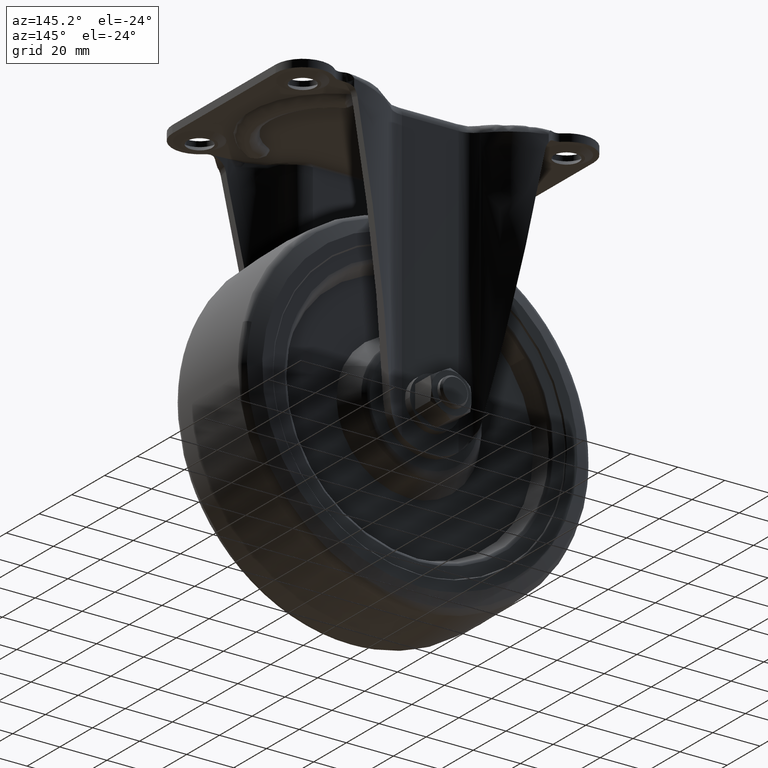
[diagram: clean part render]
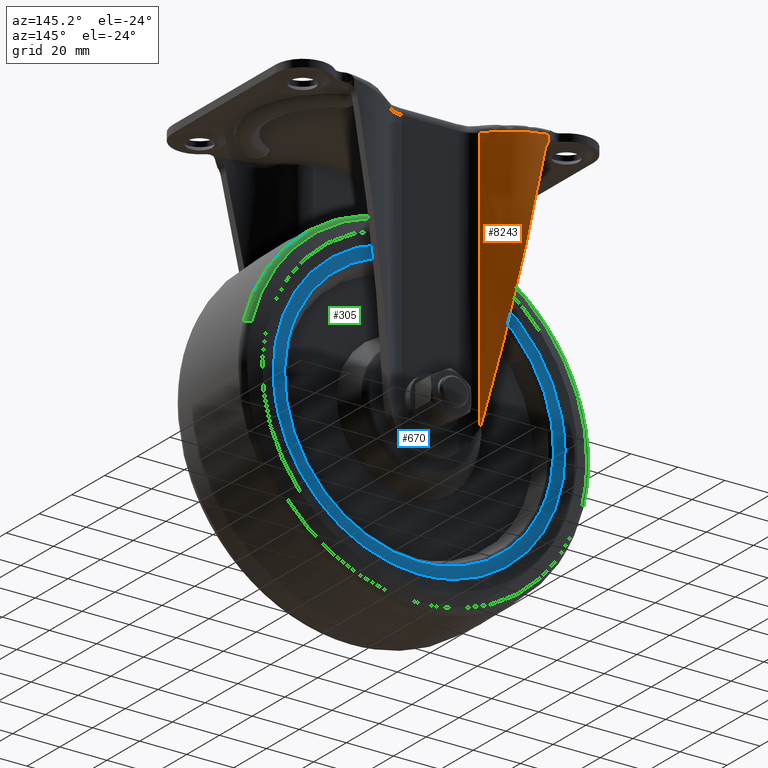
[diagram: same view with three faces highlighted in distinct colors, each labeled with its STEP entity id]
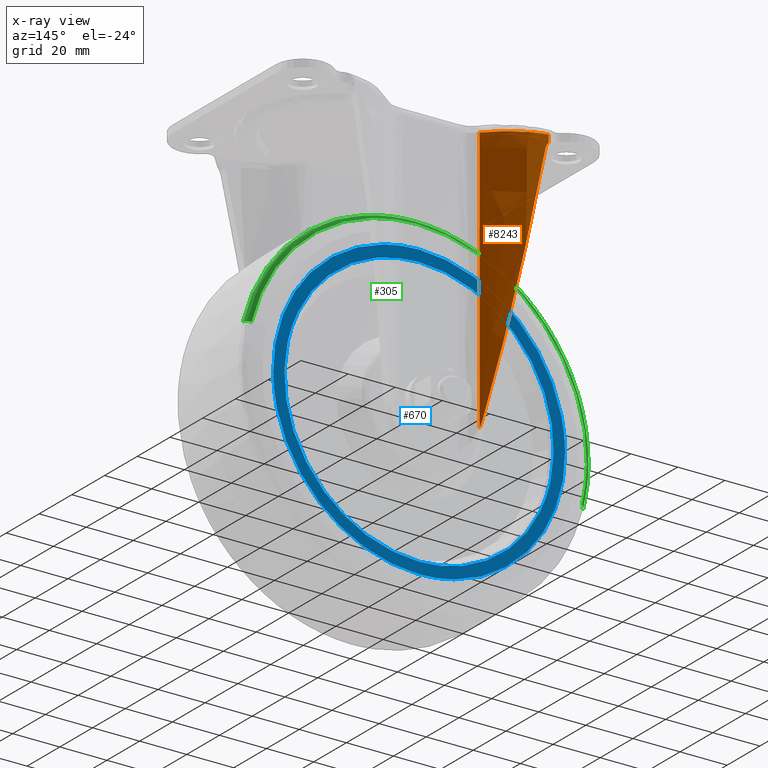
[diagram: x-ray of the same camera — body ghosted, the three highlighted faces saturated]
A machine part, auxiliary view with three faces highlighted in distinct colors.
The next image is the same camera in x-ray (body ghosted, the three faces saturated) — at least one of them is partly hidden behind the body in this view.
Their STEP definitions:

[orange] entity #8243 — the highlighted face is a freeform B-spline surface patch.
#6175=CARTESIAN_POINT('',(-18.914965390891901,31.823452248050248,-4.200000000000000));
#6176=VERTEX_POINT('',#6175);
#6190=CARTESIAN_POINT('',(-41.310867333052400,41.797070675534847,-2.800198280694555));
#6191=VERTEX_POINT('',#6190);
#6192=CARTESIAN_POINT('',(-41.310867333052400,41.797070675534847,-2.800198280694555));
#6193=CARTESIAN_POINT('',(-41.033638122431213,41.787823440271190,-2.823273923923364));
#6194=CARTESIAN_POINT('',(-40.486316256655037,41.769567622335352,-2.868831185786346));
#6195=CARTESIAN_POINT('',(-39.677219676884391,41.716107141901638,-2.935735081493415));
#6196=CARTESIAN_POINT('',(-38.890952693475988,41.645833362722527,-3.000455438885109));
#6197=CARTESIAN_POINT('',(-38.127897782924677,41.558498107182942,-3.062956362403513));
#6198=CARTESIAN_POINT('',(-37.388307968972462,41.456161941061133,-3.123247125043764));
#6199=CARTESIAN_POINT('',(-36.672383769988812,41.340239901498592,-3.181325385844740));
#6200=CARTESIAN_POINT('',(-35.980259853360280,41.212258578885148,-3.237191793000607));
#6201=CARTESIAN_POINT('',(-35.312014779681839,41.073659411001067,-3.290846233591897));
#6202=CARTESIAN_POINT('',(-34.667674674558207,40.925847296648712,-3.342288796816125));
#6203=CARTESIAN_POINT('',(-34.047218299462450,40.770176644760923,-3.391519527968912));
#6204=CARTESIAN_POINT('',(-33.450581592286980,40.607953777683313,-3.438538494217433));
#6205=CARTESIAN_POINT('',(-32.877662161113633,40.440435452748261,-3.483345764533865));
#6206=CARTESIAN_POINT('',(-32.328323595764282,40.268828648898257,-3.525941434600728));
#6207=CARTESIAN_POINT('',(-31.802399633086530,40.094290283488718,-3.566325560662325));
#6208=CARTESIAN_POINT('',(-31.299698129728149,39.917927157121731,-3.604498399560539));
#6209=CARTESIAN_POINT('',(-30.820004959798229,39.740796088403073,-3.640459578369495));
#6210=CARTESIAN_POINT('',(-30.363087418437519,39.563904008454259,-3.674211023113847));
#6211=CARTESIAN_POINT('',(-29.928698588242590,39.388208810484812,-3.705746733040574));
#6212=CARTESIAN_POINT('',(-29.516577575317569,39.214618080718928,-3.735088478078207));
#6213=CARTESIAN_POINT('',(-28.723336103917731,38.867681771360068,-3.790138003451206));
#6214=CARTESIAN_POINT('',(-27.570466121118692,38.316613577918787,-3.866034712222266));
#6215=CARTESIAN_POINT('',(-26.093679983757092,37.511516601307619,-3.955093731141885));
#6216=CARTESIAN_POINT('',(-24.697704659041609,36.653771071691821,-4.030439326039748));
#6217=CARTESIAN_POINT('',(-23.382841974869830,35.751251987917129,-4.092113859119640));
#6218=CARTESIAN_POINT('',(-22.148312807404739,34.811890404244373,-4.140206191581433));
#6219=CARTESIAN_POINT('',(-20.994423097411001,33.841758349421383,-4.174340188807389));
#6220=CARTESIAN_POINT('',(-19.915349003443779,32.851916202767747,-4.195878371411021));
#6221=CARTESIAN_POINT('',(-19.245042321144439,32.162794297229340,-4.198640067174997));
#6222=CARTESIAN_POINT('',(-18.914965390891901,31.823452248050259,-4.199999999999982));
#6223=B_SPLINE_CURVE_WITH_KNOTS('',3,(#6192,#6193,#6194,#6195,#6196,#6197,#6198,#6199,#6200,#6201,#6202,#6203,#6204,#6205,#6206,#6207,#6208,#6209,#6210,#6211,#6212,#6213,#6214,#6215,#6216,#6217,#6218,#6219,#6220,#6221,#6222),.UNSPECIFIED.,.F.,.U.,(4,1,1,1,1,1,1,1,1,1,1,1,1,1,1,1,1,1,1,1,1,1,1,1,1,1,1,1,4),(0.0,0.033128302968988,0.065403800817100,0.096826499661041,0.127396406522921,0.157113529423377,0.185977877488419,0.213989461072557,0.241148291901244,0.267454383236407,0.292907750069698,0.317508409349216,0.341256380246945,0.364151684475952,0.386194346668925,0.407384394832839,0.427721860898881,0.447206781392634,0.465839198257507,0.483619159875461,0.500546722344587,0.569098661517072,0.635895238104365,0.700939460937585,0.764234592080952,0.825784175034230,0.885592066898320,0.943662475174498,1.0),.UNSPECIFIED.);
#6224=EDGE_CURVE('',#6191,#6176,#6223,.T.);
#7988=CARTESIAN_POINT('',(-42.148463117858121,41.807833056924643,-119.831430783263500));
#7989=CARTESIAN_POINT('',(-42.148131936802592,41.808191815316277,-106.502873748346400));
#7990=CARTESIAN_POINT('',(-42.148753870925482,41.807534098067130,-79.845759688423087));
#7991=CARTESIAN_POINT('',(-42.148490392423618,41.807745104357878,-48.745793238400083));
#7992=CARTESIAN_POINT('',(-42.149082053980131,41.807311572260481,-26.531531539014590));
#7993=CARTESIAN_POINT('',(-42.148944182915869,41.807590080979232,-16.535113763391699));
#7994=CARTESIAN_POINT('',(-42.148823675462182,41.807884125362399,-9.870835255104575));
#7995=CARTESIAN_POINT('',(-42.148736649260883,41.808174500128672,-6.538696003532283));
#7996=CARTESIAN_POINT('',(-42.148708623930133,41.806738343592698,-3.761913245199364));
#7997=CARTESIAN_POINT('',(-42.148610045412028,41.807225408726097,-1.540487083681781));
#7998=CARTESIAN_POINT('',(-42.148584904416339,41.806963643748730,-0.429773989553780));
#7999=CARTESIAN_POINT('',(-42.148566360062013,41.806965810387332,0.125582553806966));
#8000=CARTESIAN_POINT('',(-39.040216582173528,41.808809068677341,-119.831430783138000));
#8001=CARTESIAN_POINT('',(-39.039311637263360,41.809683814418392,-106.502873743931300));
#8002=CARTESIAN_POINT('',(-39.040352824251499,41.808875153242283,-79.845759709689133));
#8003=CARTESIAN_POINT('',(-39.039941406519333,41.809004140657869,-48.745793241363089));
#8004=CARTESIAN_POINT('',(-39.040715621337426,41.808356826082758,-26.531531540602220));
#8005=CARTESIAN_POINT('',(-39.040596950534827,41.808623382428742,-16.535113763054721));
#8006=CARTESIAN_POINT('',(-39.040499467338037,41.808681644607383,-9.870835245775611));
#8007=CARTESIAN_POINT('',(-39.040450731087901,41.808024642368579,-6.538695967499131));
#8008=CARTESIAN_POINT('',(-39.040340862978013,41.809142349065752,-3.761913282881113));
#8009=CARTESIAN_POINT('',(-39.040314730700338,41.808436726569042,-1.540487090828467));
#8010=CARTESIAN_POINT('',(-39.040285592672902,41.808444105801406,-0.429774004975094));
#8011=CARTESIAN_POINT('',(-39.040273613463647,41.808342232865357,0.125582541068617));
#8012=CARTESIAN_POINT('',(-35.948320548609942,41.357000774915782,-119.831430783278410));
#8013=CARTESIAN_POINT('',(-35.949458759033178,41.356024599117617,-106.502873759258610));
#8014=CARTESIAN_POINT('',(-35.948668725188462,41.356219370918573,-79.845759634311037));
#8015=CARTESIAN_POINT('',(-35.948628667446101,41.356797890743593,-48.745793266718813));
#8016=CARTESIAN_POINT('',(-35.948239756244398,41.357061793861519,-26.531531538490139));
#8017=CARTESIAN_POINT('',(-35.948154259194922,41.357359294085228,-16.535113761965551));
#8018=CARTESIAN_POINT('',(-35.948205275523833,41.357275669438508,-9.870835246176608));
#8019=CARTESIAN_POINT('',(-35.948234328674467,41.357571930480063,-6.538695997606204));
#8020=CARTESIAN_POINT('',(-35.948324558084771,41.356843943994740,-3.761913264998131));
#8021=CARTESIAN_POINT('',(-35.948381354966827,41.356899049781291,-1.540487096948937));
#8022=CARTESIAN_POINT('',(-35.948420839101523,41.356769850719459,-0.429774008717178));
#8023=CARTESIAN_POINT('',(-35.948441806456849,41.356736817419979,0.125582534290149));
#8024=CARTESIAN_POINT('',(-29.992384691724730,39.575962944798789,-119.831430783007900));
#8025=CARTESIAN_POINT('',(-29.991489471920922,39.576954125258119,-106.502873755547300));
#8026=CARTESIAN_POINT('',(-29.992909161547249,39.575273424821297,-79.845759674211450));
#8027=CARTESIAN_POINT('',(-29.992146688467159,39.576256081167031,-48.745793267071370));
#8028=CARTESIAN_POINT('',(-29.992303676824129,39.576010550220019,-26.531531542711861));
#8029=CARTESIAN_POINT('',(-29.992127327503891,39.576351759823908,-16.535113756441461));
#8030=CARTESIAN_POINT('',(-29.992251263717080,39.576204740814070,-9.870835242228834));
#8031=CARTESIAN_POINT('',(-29.992327135776709,39.575960773054327,-6.538695981293444));
#8032=CARTESIAN_POINT('',(-29.992398304939730,39.575985456255232,-3.761913271387767));
#8033=CARTESIAN_POINT('',(-29.992471108323642,39.575821663631707,-1.540487098669142));
#8034=CARTESIAN_POINT('',(-29.992511140476090,39.575771689741408,-0.429774013885612));
#8035=CARTESIAN_POINT('',(-29.992529768222479,39.575738583331272,0.125582528981318));
#8036=CARTESIAN_POINT('',(-27.159847891224612,38.256488007735889,-119.831430783896710));
#8037=CARTESIAN_POINT('',(-27.161794974544819,38.254470286790159,-106.502873734843700));
#8038=CARTESIAN_POINT('',(-27.159155542649639,38.257227083675737,-79.845759682069840));
#8039=CARTESIAN_POINT('',(-27.160150496162139,38.256202117209391,-48.745793265799918));
#8040=CARTESIAN_POINT('',(-27.159838784330301,38.256549779449500,-26.531531550813110));
#8041=CARTESIAN_POINT('',(-27.159558060495780,38.256883461074679,-16.535113745319400));
#8042=CARTESIAN_POINT('',(-27.159772578576071,38.256653557261643,-9.870835236466908));
#8043=CARTESIAN_POINT('',(-27.159977697071479,38.256456514592031,-6.538695987242859));
#8044=CARTESIAN_POINT('',(-27.160018947901040,38.256372114985780,-3.761913267376277));
#8045=CARTESIAN_POINT('',(-27.160126872304101,38.256260062391682,-1.540487099072695));
#8046=CARTESIAN_POINT('',(-27.160163091359621,38.256215519395766,-0.429774012510340));
#8047=CARTESIAN_POINT('',(-27.160191025932090,38.256184300599287,0.125582529894146));
#8048=CARTESIAN_POINT('',(-23.696877185966201,35.979928044003053,-119.831430781876310));
#8049=CARTESIAN_POINT('',(-23.696929845485460,35.979867348630201,-106.502873750196900));
#8050=CARTESIAN_POINT('',(-23.696538283329140,35.980288059287702,-79.845759679351644));
#8051=CARTESIAN_POINT('',(-23.696617804009328,35.980159522065307,-48.745793265838010));
#8052=CARTESIAN_POINT('',(-23.696616798046971,35.980212227228272,-26.531531551529831));
#8053=CARTESIAN_POINT('',(-23.696323151698589,35.980524798116399,-16.535113743948539));
#8054=CARTESIAN_POINT('',(-23.696299268675940,35.980575908955963,-9.870835209241186));
#8055=CARTESIAN_POINT('',(-23.696497114970370,35.980378686624192,-6.538695959481749));
#8056=CARTESIAN_POINT('',(-23.696805300146391,35.980071537858791,-3.761913260602808));
#8057=CARTESIAN_POINT('',(-23.696924599759232,35.979960127840940,-1.540487089820801));
#8058=CARTESIAN_POINT('',(-23.697084868852780,35.979789968862967,-0.429774012975475));
#8059=CARTESIAN_POINT('',(-23.697144319894431,35.979727726727823,0.125582527217141));
#8060=CARTESIAN_POINT('',(-22.441799329992609,35.064870477987732,-119.831430782976400));
#8061=CARTESIAN_POINT('',(-22.441876123646139,35.064788353171188,-106.502873749049800));
#8062=CARTESIAN_POINT('',(-22.441564746608471,35.065121421112572,-79.845759679447596));
#8063=CARTESIAN_POINT('',(-22.441630012142500,35.065018987677263,-48.745793266132587));
#8064=CARTESIAN_POINT('',(-22.441648578336331,35.065047731232077,-26.531531548735909));
#8065=CARTESIAN_POINT('',(-22.441462081982969,35.065243849427937,-16.535113747405969));
#8066=CARTESIAN_POINT('',(-22.441299074777209,35.065435146910623,-9.870835195895932));
#8067=CARTESIAN_POINT('',(-22.441575868795660,35.065181419898053,-6.538695952604484));
#8068=CARTESIAN_POINT('',(-22.441582004290581,35.065224161582790,-3.761913227121164));
#8069=CARTESIAN_POINT('',(-22.442136841271040,35.064624004963612,-1.540487089537640));
#8070=CARTESIAN_POINT('',(-22.442296993434439,35.064461835305167,-0.429774012689791));
#8071=CARTESIAN_POINT('',(-22.442397678429050,35.064357287328093,0.125582524227297));
#8072=CARTESIAN_POINT('',(-20.864118636625680,33.728893351401723,-119.831430782574000));
#8073=CARTESIAN_POINT('',(-20.864045490963999,33.728971423613892,-106.502873749590510));
#8074=CARTESIAN_POINT('',(-20.864078129256431,33.728943351681750,-79.845759678609895));
#8075=CARTESIAN_POINT('',(-20.864017617547422,33.728989279293152,-48.745793266347498));
#8076=CARTESIAN_POINT('',(-20.864059219300991,33.728970555629758,-26.531531542987999));
#8077=CARTESIAN_POINT('',(-20.864000741093939,33.729037759296517,-16.535113746541182));
#8078=CARTESIAN_POINT('',(-20.863992152362851,33.729059830205557,-9.870835204926124));
#8079=CARTESIAN_POINT('',(-20.863121141366339,33.729945299662198,-6.538695851671469));
#8080=CARTESIAN_POINT('',(-20.864475601539720,33.728663593956753,-3.761913242757073));
#8081=CARTESIAN_POINT('',(-20.864945727191380,33.728144111450121,-1.540487100014433));
#8082=CARTESIAN_POINT('',(-20.865337446359181,33.727758078031840,-0.429774043396999));
#8083=CARTESIAN_POINT('',(-20.865418457821718,33.727674427232202,0.125582495597189));
#8084=CARTESIAN_POINT('',(-19.919648722807452,32.847152228608763,-119.831430782675400));
#8085=CARTESIAN_POINT('',(-19.919612135527299,32.847192171548237,-106.502873749087100));
#8086=CARTESIAN_POINT('',(-19.919665179459781,32.847143580236022,-79.845759678115840));
#8087=CARTESIAN_POINT('',(-19.919619777881891,32.847185314749012,-48.745793266480710));
#8088=CARTESIAN_POINT('',(-19.919633610070019,32.847176776393979,-26.531531538082199));
#8089=CARTESIAN_POINT('',(-19.919662029286489,32.847152284312408,-16.535113745396458));
#8090=CARTESIAN_POINT('',(-19.919645599838439,32.847168719723634,-9.870835200839158));
#8091=CARTESIAN_POINT('',(-19.919036651637480,32.847786902174377,-6.538695870744046));
#8092=CARTESIAN_POINT('',(-19.918458671688150,32.848351080554536,-3.761913077952217));
#8093=CARTESIAN_POINT('',(-19.921894448475779,32.844981143530539,-1.540487211537722));
#8094=CARTESIAN_POINT('',(-19.921373558704961,32.845489359785617,-0.429774069654108));
#8095=CARTESIAN_POINT('',(-19.921534100015361,32.845331982559522,0.125582462073115));
#8096=CARTESIAN_POINT('',(-19.281307542558071,32.206119093818323,-119.831430782827400));
#8097=CARTESIAN_POINT('',(-19.281266231784699,32.206163504767282,-106.502873748925790));
#8098=CARTESIAN_POINT('',(-19.281294080565530,32.206137695043722,-79.845759678488349));
#8099=CARTESIAN_POINT('',(-19.281251837304769,32.206183414436467,-48.745793264309377));
#8100=CARTESIAN_POINT('',(-19.281324487540680,32.206105673575372,-26.531531540301120));
#8101=CARTESIAN_POINT('',(-19.281136254458850,32.206283052700797,-16.535113726430879));
#8102=CARTESIAN_POINT('',(-19.281657525648921,32.205768722717323,-9.870835229686417));
#8103=CARTESIAN_POINT('',(-19.279460273516840,32.207916021844262,-6.538695751598512));
#8104=CARTESIAN_POINT('',(-19.287289033947580,32.200303295049657,-3.761913735148998));
#8105=CARTESIAN_POINT('',(-19.282741825985241,32.204706300365302,-1.540487131341338));
#8106=CARTESIAN_POINT('',(-19.283568697724370,32.203905306609087,-0.429774113767058));
#8107=CARTESIAN_POINT('',(-19.283477350233010,32.203996086340112,0.125582441339491));
#8108=CARTESIAN_POINT('',(-18.923115708222060,31.833193111933479,-119.831430783351390));
#8109=CARTESIAN_POINT('',(-18.923125538237869,31.833178351019701,-106.502873748866800));
#8110=CARTESIAN_POINT('',(-18.923113126932549,31.833194561541038,-79.845759677420958));
#8111=CARTESIAN_POINT('',(-18.923127307405721,31.833187672227211,-48.745793266128402));
#8112=CARTESIAN_POINT('',(-18.923103987708760,31.833196744566099,-26.531531533016619));
#8113=CARTESIAN_POINT('',(-18.923127916757849,31.833161834073660,-16.535113738342499));
#8114=CARTESIAN_POINT('',(-18.923087866759690,31.833190536728001,-9.870835189172725));
#8115=CARTESIAN_POINT('',(-18.923471689972949,31.832810297890489,-6.538695947990862));
#8116=CARTESIAN_POINT('',(-18.922110785277489,31.834128006824962,-3.761913088817379));
#8117=CARTESIAN_POINT('',(-18.925890126895840,31.830447290501439,-1.540487248354171));
#8118=CARTESIAN_POINT('',(-18.925302115888890,31.831029327418609,-0.429774100712471));
#8119=CARTESIAN_POINT('',(-18.925451759058092,31.830886320054301,0.125582432291428));
#8120=CARTESIAN_POINT('',(-18.657825486024059,31.550173995310921,-119.831430783313610));
#8121=CARTESIAN_POINT('',(-18.657864191562151,31.550129293210048,-106.502873748733710));
#8122=CARTESIAN_POINT('',(-18.657822474363090,31.550176506189040,-79.845759677041045));
#8123=CARTESIAN_POINT('',(-18.657867056674359,31.550141602913961,-48.745793266503227));
#8124=CARTESIAN_POINT('',(-18.657808922403412,31.550179329043679,-26.531531530154162));
#8125=CARTESIAN_POINT('',(-18.657906862829400,31.550068554228019,-16.535113742126001));
#8126=CARTESIAN_POINT('',(-18.657590695783579,31.550361947724799,-9.870835167032551));
#8127=CARTESIAN_POINT('',(-18.658885055685520,31.549089748095120,-6.538696009437957));
#8128=CARTESIAN_POINT('',(-18.654736342579699,31.553120062170350,-3.761912895225965));
#8129=CARTESIAN_POINT('',(-18.661002815843108,31.547022970874789,-1.540487282272607));
#8130=CARTESIAN_POINT('',(-18.660026428983290,31.547983930095640,-0.429774099063213));
#8131=CARTESIAN_POINT('',(-18.660253009723078,31.547767084838330,0.125582426904833));
#8132=CARTESIAN_POINT('',(-18.395925627472330,31.263861683305041,-119.831430783512800));
#8133=CARTESIAN_POINT('',(-18.395978440022962,31.263798688109748,-106.502873748507300));
#8134=CARTESIAN_POINT('',(-18.395907584004242,31.263877477249569,-79.845759676955780));
#8135=CARTESIAN_POINT('',(-18.395975354959251,31.263821202303891,-48.745793266205503));
#8136=CARTESIAN_POINT('',(-18.395906614216798,31.263863974803218,-26.531531529022789));
#8137=CARTESIAN_POINT('',(-18.395985144541559,31.263768258114489,-16.535113739251461));
#8138=CARTESIAN_POINT('',(-18.395675075773429,31.264051637417261,-9.870835164354240));
#8139=CARTESIAN_POINT('',(-18.397025172142740,31.262719574833579,-6.538696012028827));
#8140=CARTESIAN_POINT('',(-18.392425280908800,31.267187383672070,-3.761912856730326));
#8141=CARTESIAN_POINT('',(-18.399087478797931,31.260710438618180,-1.540487279927697));
#8142=CARTESIAN_POINT('',(-18.398170556355200,31.261614745025931,-0.429774102222842));
#8143=CARTESIAN_POINT('',(-18.398406002105752,31.261390121222298,0.125582422920966));
#8144=CARTESIAN_POINT('',(-18.200062945708630,31.044451865864922,-119.831430783672900));
#8145=CARTESIAN_POINT('',(-18.200124840662660,31.044376269888819,-106.502873748295700));
#8146=CARTESIAN_POINT('',(-18.200031282080669,31.044479943758191,-79.845759677019430));
#8147=CARTESIAN_POINT('',(-18.200114273981089,31.044409561502949,-48.745793265672887));
#8148=CARTESIAN_POINT('',(-18.200047547790650,31.044446301100070,-26.531531528930561));
#8149=CARTESIAN_POINT('',(-18.200076376512481,31.044396163020341,-16.535113734727609));
#8150=CARTESIAN_POINT('',(-18.199860986320939,31.044584132840271,-9.870835168396503));
#8151=CARTESIAN_POINT('',(-18.200896574885029,31.043555059613482,-6.538695987409854));
#8152=CARTESIAN_POINT('',(-18.197106250177711,31.047232820686741,-3.761912906532102));
#8153=CARTESIAN_POINT('',(-18.203025473288498,31.041483626383531,-1.540487261665616));
#8154=CARTESIAN_POINT('',(-18.202354289585980,31.042149251895658,-0.429774106569418));
#8155=CARTESIAN_POINT('',(-18.202565151129559,31.041949157360818,0.125582420799499));
#8156=CARTESIAN_POINT('',(-18.091293437498940,30.920692749758850,-119.831430783763690));
#8157=CARTESIAN_POINT('',(-18.091359801494239,30.920610625082499,-106.502873748173500));
#8158=CARTESIAN_POINT('',(-18.091252853441340,30.920728995265879,-79.845759677051291));
#8159=CARTESIAN_POINT('',(-18.091345251035150,30.920649788329708,-48.745793265376591));
#8160=CARTESIAN_POINT('',(-18.091278675310392,30.920684080853469,-26.531531528849118));
#8161=CARTESIAN_POINT('',(-18.091280096130479,30.920659086376311,-16.535113732234201));
#8162=CARTESIAN_POINT('',(-18.091116989535148,30.920794366439001,-9.870835170695894));
#8163=CARTESIAN_POINT('',(-18.091978131397148,30.919933532649750,-6.538695973828153));
#8164=CARTESIAN_POINT('',(-18.088689075570660,30.923122674111369,-3.761912939016998));
#8165=CARTESIAN_POINT('',(-18.094140378918599,30.917830985008109,-1.540487251347857));
#8166=CARTESIAN_POINT('',(-18.093604932191440,30.918364772398320,-0.429774108751164));
#8167=CARTESIAN_POINT('',(-18.093802047173870,30.918178354147798,0.125582419853533));
#8168=CARTESIAN_POINT('',(-18.068000046854351,30.894100440182509,-119.831430783783200));
#8169=CARTESIAN_POINT('',(-18.068067339911480,30.894016940904471,-106.502873748147100));
#8170=CARTESIAN_POINT('',(-18.067957488506391,30.894138498375380,-79.845759677057814));
#8171=CARTESIAN_POINT('',(-18.068051948855651,30.894057351594181,-48.745793265313402));
#8172=CARTESIAN_POINT('',(-18.067985348214350,30.894091173873338,-26.531531528829479));
#8173=CARTESIAN_POINT('',(-18.067980942429109,30.894071523279418,-16.535113731703451));
#8174=CARTESIAN_POINT('',(-18.067828939592630,30.894195610723909,-9.870835171185961));
#8175=CARTESIAN_POINT('',(-18.068653070639652,30.893370476423559,-6.538695970949831));
#8176=CARTESIAN_POINT('',(-18.065472690423501,30.896453705306879,-3.761912946125996));
#8177=CARTESIAN_POINT('',(-18.070822180760700,30.891261534610191,-1.540487249146102));
#8178=CARTESIAN_POINT('',(-18.070315579778111,30.891767305083551,-0.429774109206357));
#8179=CARTESIAN_POINT('',(-18.070509770357571,30.891583795032769,0.125582419660808));
#8180=B_SPLINE_SURFACE_WITH_KNOTS('',3,3,((#7988,#8000,#8012,#8024,#8036,#8048,#8060,#8072,#8084,#8096,#8108,#8120,#8132,#8144,#8156,#8168),(#7989,#8001,#8013,#8025,#8037,#8049,#8061,#8073,#8085,#8097,#8109,#8121,#8133,#8145,#8157,#8169),(#7990,#8002,#8014,#8026,#8038,#8050,#8062,#8074,#8086,#8098,#8110,#8122,#8134,#8146,#8158,#8170),(#7991,#8003,#8015,#8027,#8039,#8051,#8063,#8075,#8087,#8099,#8111,#8123,#8135,#8147,#8159,#8171),(#7992,#8004,#8016,#8028,#8040,#8052,#8064,#8076,#8088,#8100,#8112,#8124,#8136,#8148,#8160,#8172),(#7993,#8005,#8017,#8029,#8041,#8053,#8065,#8077,#8089,#8101,#8113,#8125,#8137,#8149,#8161,#8173),(#7994,#8006,#8018,#8030,#8042,#8054,#8066,#8078,#8090,#8102,#8114,#8126,#8138,#8150,#8162,#8174),(#7995,#8007,#8019,#8031,#8043,#8055,#8067,#8079,#8091,#8103,#8115,#8127,#8139,#8151,#8163,#8175),(#7996,#8008,#8020,#8032,#8044,#8056,#8068,#8080,#8092,#8104,#8116,#8128,#8140,#8152,#8164,#8176),(#7997,#8009,#8021,#8033,#8045,#8057,#8069,#8081,#8093,#8105,#8117,#8129,#8141,#8153,#8165,#8177),(#7998,#8010,#8022,#8034,#8046,#8058,#8070,#8082,#8094,#8106,#8118,#8130,#8142,#8154,#8166,#8178),(#7999,#8011,#8023,#8035,#8047,#8059,#8071,#8083,#8095,#8107,#8119,#8131,#8143,#8155,#8167,#8179)),.UNSPECIFIED.,.F.,.F.,.U.,(4,1,1,1,1,1,1,1,1,4),(4,2,2,1,1,1,1,1,1,1,1,4),(0.0,39.985671105222437,79.971342210444888,93.299899245519029,106.628456280593200,109.960595539361710,113.292734798130300,116.624874056898800,118.290943686283100,119.957013315667300),(0.0,9.324866651810957,18.649733303621922,21.758022187558900,23.312166629527390,24.866311071495890,25.643383292480131,26.031919402972260,26.420455513464379,26.808991623956501,27.197527734448631,27.303657339251039),.UNSPECIFIED.);
#8181=CARTESIAN_POINT('',(-41.310867333052400,41.797070675534847,-5.806077492445221));
#8182=VERTEX_POINT('',#8181);
#8183=CARTESIAN_POINT('',(-41.310867333052400,41.797070675534847,-5.806077492445221));
#8184=CARTESIAN_POINT('',(-41.310867333052400,41.797070675534847,-2.800198280694555));
#8185=QUASI_UNIFORM_CURVE('',1,(#8183,#8184),.UNSPECIFIED.,.F.,.U.);
#8186=EDGE_CURVE('',#8182,#6191,#8185,.T.);
#8187=ORIENTED_EDGE('',*,*,#8186,.T.);
#8188=ORIENTED_EDGE('',*,*,#6224,.T.);
#8189=CARTESIAN_POINT('',(-18.914965390891901,31.823452248050248,-116.977010478831200));
#8190=VERTEX_POINT('',#8189);
#8191=CARTESIAN_POINT('',(-18.914965390891901,31.823452248050248,-116.977010478831200));
#8192=CARTESIAN_POINT('',(-18.914965390891901,31.823452248050248,-4.200000000000000));
#8193=QUASI_UNIFORM_CURVE('',1,(#8191,#8192),.UNSPECIFIED.,.F.,.U.);
#8194=EDGE_CURVE('',#8190,#6176,#8193,.T.);
#8195=ORIENTED_EDGE('',*,*,#8194,.F.);
#8196=CARTESIAN_POINT('',(-19.451644345478350,32.376085414552598,-114.840670278497600));
#8197=VERTEX_POINT('',#8196);
#8198=CARTESIAN_POINT('',(-19.451644345478378,32.376085414552541,-114.840670278497600));
#8199=CARTESIAN_POINT('',(-19.381605518586859,32.305680281776880,-115.203877204793500));
#8200=CARTESIAN_POINT('',(-19.301606093654250,32.224622567231300,-115.564056273845790));
#8201=CARTESIAN_POINT('',(-19.189351063744141,32.109342700227522,-116.010429348247100));
#8202=CARTESIAN_POINT('',(-19.166286936297240,32.085587567903183,-116.099511188713090));
#8203=CARTESIAN_POINT('',(-19.118936030477091,32.036657766261612,-116.277286723293100));
#8204=CARTESIAN_POINT('',(-19.094645507885851,32.011478958668469,-116.365987051744100));
#8205=CARTESIAN_POINT('',(-19.020284126305370,31.934132760116459,-116.630334622047600));
#8206=CARTESIAN_POINT('',(-18.968620778862821,31.880050109458640,-116.804623845973400));
#8207=CARTESIAN_POINT('',(-18.914965390891901,31.823452248050248,-116.977010478831200));
#8208=B_SPLINE_CURVE_WITH_KNOTS('',3,(#8198,#8199,#8200,#8201,#8202,#8203,#8204,#8205,#8206,#8207),.UNSPECIFIED.,.F.,.U.,(4,2,2,2,4),(0.0,0.500000000000018,0.625000000000018,0.750000000000018,1.0),.UNSPECIFIED.);
#8209=EDGE_CURVE('',#8197,#8190,#8208,.T.);
#8210=ORIENTED_EDGE('',*,*,#8209,.F.);
#8211=CARTESIAN_POINT('',(-39.888365657419897,41.728588130058299,-8.860044092794970));
#8212=VERTEX_POINT('',#8211);
#8213=CARTESIAN_POINT('',(-19.451644345478421,32.376085414552570,-114.840670278497600));
#8214=CARTESIAN_POINT('',(-27.916128374970555,40.884839036265419,-70.945600022767181));
#8215=CARTESIAN_POINT('',(-39.888365657419577,41.728588130058299,-8.860044092796738));
#8223=(BOUNDED_CURVE()B_SPLINE_CURVE(2,(#8213,#8214,#8215),.UNSPECIFIED.,.F.,.U.)CURVE()GEOMETRIC_REPRESENTATION_ITEM()QUASI_UNIFORM_CURVE()RATIONAL_B_SPLINE_CURVE((1.0,0.936310588589237,1.0))REPRESENTATION_ITEM(''));
#8224=EDGE_CURVE('',#8197,#8212,#8223,.T.);
#8225=ORIENTED_EDGE('',*,*,#8224,.T.);
#8226=CARTESIAN_POINT('',(-39.888365657419897,41.728588130058299,-8.860044092794970));
#8227=CARTESIAN_POINT('',(-39.942384145928230,41.732395129388102,-8.579915858093848));
#8228=CARTESIAN_POINT('',(-40.013115791647508,41.737253897594677,-8.305758973208887));
#8229=CARTESIAN_POINT('',(-40.186972299649689,41.748348717745280,-7.769004798549472));
#8230=CARTESIAN_POINT('',(-40.290099357320557,41.754586343490928,-7.506408323537429));
#8231=CARTESIAN_POINT('',(-40.469330606238060,41.764281340692222,-7.121256085971225));
#8232=CARTESIAN_POINT('',(-40.533230364168404,41.767570386008849,-6.994230650311868));
#8233=CARTESIAN_POINT('',(-40.669169407956787,41.774106431912223,-6.743587479659573));
#8234=CARTESIAN_POINT('',(-40.740803232486783,41.777333834422564,-6.620702026260092));
#8235=CARTESIAN_POINT('',(-40.966547293477461,41.786667541853980,-6.259248483174738));
#8236=CARTESIAN_POINT('',(-41.131460433001521,41.792431797123207,-6.027856975851437));
#8237=CARTESIAN_POINT('',(-41.310867333052400,41.797070675534847,-5.806077492445221));
#8238=B_SPLINE_CURVE_WITH_KNOTS('',3,(#8226,#8227,#8228,#8229,#8230,#8231,#8232,#8233,#8234,#8235,#8236,#8237),.UNSPECIFIED.,.F.,.U.,(4,2,2,2,2,4),(0.0,0.250000000000002,0.500000000000002,0.625000000000002,0.750000000000001,1.0),.UNSPECIFIED.);
#8239=EDGE_CURVE('',#8212,#8182,#8238,.T.);
#8240=ORIENTED_EDGE('',*,*,#8239,.T.);
#8241=EDGE_LOOP('',(#8187,#8188,#8195,#8210,#8225,#8240));
#8242=FACE_OUTER_BOUND('',#8241,.T.);
#8243=ADVANCED_FACE('',(#8242),#8180,.T.);

[blue] entity #670 — the highlighted face is a freeform B-spline surface patch.
#469=CARTESIAN_POINT('',(-61.995104740636279,22.000000013263790,-111.220905527207900));
#470=VERTEX_POINT('',#469);
#484=CARTESIAN_POINT('',(0.0,22.0,-174.0));
#485=VERTEX_POINT('',#484);
#486=CARTESIAN_POINT('',(-61.995104740636272,22.000000013263797,-111.220905527207880));
#487=CARTESIAN_POINT('',(-61.999999999999993,22.000000013222646,-111.610437384490650));
#488=CARTESIAN_POINT('',(-61.999999999999993,22.000000013180969,-112.0));
#489=CARTESIAN_POINT('',(-62.000000000000007,22.000000006549072,-174.000000000000030));
#490=CARTESIAN_POINT('',(0.0,22.0,-174.0));
#498=(BOUNDED_CURVE()B_SPLINE_CURVE(2,(#486,#487,#488,#489,#490),.UNSPECIFIED.,.F.,.U.)B_SPLINE_CURVE_WITH_KNOTS((3,2,3),(0.747784295921659,0.750000000000000,1.0),.UNSPECIFIED.)CURVE()GEOMETRIC_REPRESENTATION_ITEM()RATIONAL_B_SPLINE_CURVE((0.994854295643854,0.997404141202227,1.0,0.707106781186548,1.0))REPRESENTATION_ITEM(''));
#499=EDGE_CURVE('',#470,#485,#498,.T.);
#501=CARTESIAN_POINT('',(61.995104740636279,22.000000013263790,-112.779094472792100));
#502=VERTEX_POINT('',#501);
#503=CARTESIAN_POINT('',(0.0,22.0,-174.0));
#504=CARTESIAN_POINT('',(61.225739654229535,22.000000006631897,-174.0));
#505=CARTESIAN_POINT('',(61.995104740636279,22.000000013263794,-112.779094472792150));
#513=(BOUNDED_CURVE()B_SPLINE_CURVE(2,(#503,#504,#505),.UNSPECIFIED.,.F.,.U.)B_SPLINE_CURVE_WITH_KNOTS((3,3),(0.0,0.247784295921659),.UNSPECIFIED.)CURVE()GEOMETRIC_REPRESENTATION_ITEM()RATIONAL_B_SPLINE_CURVE((1.0,0.709702639984321,0.994854295643854))REPRESENTATION_ITEM(''));
#514=EDGE_CURVE('',#485,#502,#513,.T.);
#559=CARTESIAN_POINT('',(0.0,22.0,-50.0));
#560=VERTEX_POINT('',#559);
#561=CARTESIAN_POINT('',(61.995104740636279,22.000000013263794,-112.779094472792150));
#562=CARTESIAN_POINT('',(61.999999999999986,22.000000013222643,-112.389562615509230));
#563=CARTESIAN_POINT('',(61.999999999999993,22.000000013180969,-112.0));
#564=CARTESIAN_POINT('',(62.000000000000007,22.000000006549072,-49.999999999999986));
#565=CARTESIAN_POINT('',(0.0,22.0,-50.0));
#573=(BOUNDED_CURVE()B_SPLINE_CURVE(2,(#561,#562,#563,#564,#565),.UNSPECIFIED.,.F.,.U.)B_SPLINE_CURVE_WITH_KNOTS((3,2,3),(0.247784295921659,0.250000000000000,0.500000000000000),.UNSPECIFIED.)CURVE()GEOMETRIC_REPRESENTATION_ITEM()RATIONAL_B_SPLINE_CURVE((0.994854295643854,0.997404141202227,1.0,0.707106781186548,1.0))REPRESENTATION_ITEM(''));
#574=EDGE_CURVE('',#502,#560,#573,.T.);
#576=CARTESIAN_POINT('',(0.0,22.0,-50.0));
#577=CARTESIAN_POINT('',(-61.225739654229493,22.000000006631893,-49.999999999999993));
#578=CARTESIAN_POINT('',(-61.995104740636272,22.000000013263797,-111.220905527207880));
#586=(BOUNDED_CURVE()B_SPLINE_CURVE(2,(#576,#577,#578),.UNSPECIFIED.,.F.,.U.)B_SPLINE_CURVE_WITH_KNOTS((3,3),(0.500000000000000,0.747784295921659),.UNSPECIFIED.)CURVE()GEOMETRIC_REPRESENTATION_ITEM()RATIONAL_B_SPLINE_CURVE((1.0,0.709702639984321,0.994854295643854))REPRESENTATION_ITEM(''));
#587=EDGE_CURVE('',#560,#470,#586,.T.);
#593=CARTESIAN_POINT('',(-68.188415463908754,22.0,-43.806200240336047));
#594=CARTESIAN_POINT('',(-68.188415463908754,22.0,-180.193803085603090));
#595=CARTESIAN_POINT('',(68.188418789585327,22.0,-43.806200240336047));
#596=CARTESIAN_POINT('',(68.188418789585327,22.0,-180.193803085603090));
#597=B_SPLINE_SURFACE_WITH_KNOTS('',1,1,((#593,#595),(#594,#596)),.UNSPECIFIED.,.F.,.F.,.U.,(2,2),(2,2),(0.0,136.387602845267110),(0.0,136.376834253494110),.UNSPECIFIED.);
#598=ORIENTED_EDGE('',*,*,#499,.F.);
#599=ORIENTED_EDGE('',*,*,#587,.F.);
#600=ORIENTED_EDGE('',*,*,#574,.F.);
#601=ORIENTED_EDGE('',*,*,#514,.F.);
#602=EDGE_LOOP('',(#598,#599,#600,#601));
#603=FACE_OUTER_BOUND('',#602,.T.);
#604=CARTESIAN_POINT('',(0.0,22.0,-169.184484891556790));
#605=VERTEX_POINT('',#604);
#606=CARTESIAN_POINT('',(51.432026003122729,22.0,-87.003760053786650));
#607=VERTEX_POINT('',#606);
#608=CARTESIAN_POINT('',(0.0,22.0,-169.184484891556790));
#609=CARTESIAN_POINT('',(57.184484886442903,22.000000000000007,-169.184484894042240));
#610=CARTESIAN_POINT('',(57.184484878271640,22.0,-112.000000006456700));
#611=CARTESIAN_POINT('',(57.184484876391174,22.000000000000007,-98.839964815528432));
#612=CARTESIAN_POINT('',(51.432026003122722,22.000000000000007,-87.003760053786650));
#620=(BOUNDED_CURVE()B_SPLINE_CURVE(2,(#608,#609,#610,#611,#612),.UNSPECIFIED.,.F.,.U.)B_SPLINE_CURVE_WITH_KNOTS((3,2,3),(0.0,0.250000000000000,0.324283295447504),.UNSPECIFIED.)CURVE()GEOMETRIC_REPRESENTATION_ITEM()RATIONAL_B_SPLINE_CURVE((1.0,0.707106781186548,1.0,0.912971705969240,0.877661399760713))REPRESENTATION_ITEM(''));
#621=EDGE_CURVE('',#605,#607,#620,.T.);
#622=ORIENTED_EDGE('',*,*,#621,.T.);
#623=CARTESIAN_POINT('',(0.0,22.0,-54.815515108443208));
#624=VERTEX_POINT('',#623);
#625=CARTESIAN_POINT('',(51.432026003122722,22.000000000000007,-87.003760053786650));
#626=CARTESIAN_POINT('',(35.788366672385003,21.999999999999996,-54.815515112414481));
#627=CARTESIAN_POINT('',(0.0,22.0,-54.815515108443208));
#635=(BOUNDED_CURVE()B_SPLINE_CURVE(2,(#625,#626,#627),.UNSPECIFIED.,.F.,.U.)B_SPLINE_CURVE_WITH_KNOTS((3,3),(0.324283295447504,0.500000000000000),.UNSPECIFIED.)CURVE()GEOMETRIC_REPRESENTATION_ITEM()RATIONAL_B_SPLINE_CURVE((0.877661399760713,0.794135075217308,1.0))REPRESENTATION_ITEM(''));
#636=EDGE_CURVE('',#607,#624,#635,.T.);
#637=ORIENTED_EDGE('',*,*,#636,.T.);
#638=CARTESIAN_POINT('',(-51.432026003122743,22.0,-136.996239946213310));
#639=VERTEX_POINT('',#638);
#640=CARTESIAN_POINT('',(0.0,22.0,-54.815515108443208));
#641=CARTESIAN_POINT('',(-57.184484886442903,22.000000000000007,-54.815515105957807));
#642=CARTESIAN_POINT('',(-57.184484878271640,22.0,-111.999999993543300));
#643=CARTESIAN_POINT('',(-57.184484876391174,22.000000000000007,-125.160035184471600));
#644=CARTESIAN_POINT('',(-51.432026003122736,22.000000000000007,-136.996239946213340));
#652=(BOUNDED_CURVE()B_SPLINE_CURVE(2,(#640,#641,#642,#643,#644),.UNSPECIFIED.,.F.,.U.)B_SPLINE_CURVE_WITH_KNOTS((3,2,3),(0.500000000000000,0.750000000000000,0.824283295447504),.UNSPECIFIED.)CURVE()GEOMETRIC_REPRESENTATION_ITEM()RATIONAL_B_SPLINE_CURVE((1.0,0.707106781186548,1.0,0.912971705969240,0.877661399760713))REPRESENTATION_ITEM(''));
#653=EDGE_CURVE('',#624,#639,#652,.T.);
#654=ORIENTED_EDGE('',*,*,#653,.T.);
#655=CARTESIAN_POINT('',(-51.432026003122736,22.000000000000007,-136.996239946213340));
#656=CARTESIAN_POINT('',(-35.788366672385024,21.999999999999996,-169.184484887585540));
#657=CARTESIAN_POINT('',(0.0,22.0,-169.184484891556790));
#665=(BOUNDED_CURVE()B_SPLINE_CURVE(2,(#655,#656,#657),.UNSPECIFIED.,.F.,.U.)B_SPLINE_CURVE_WITH_KNOTS((3,3),(0.824283295447504,1.0),.UNSPECIFIED.)CURVE()GEOMETRIC_REPRESENTATION_ITEM()RATIONAL_B_SPLINE_CURVE((0.877661399760713,0.794135075217308,1.0))REPRESENTATION_ITEM(''));
#666=EDGE_CURVE('',#639,#605,#665,.T.);
#667=ORIENTED_EDGE('',*,*,#666,.T.);
#668=EDGE_LOOP('',(#622,#637,#654,#667));
#669=FACE_BOUND('',#668,.T.);
#670=ADVANCED_FACE('',(#603,#669),#597,.F.);

[green] entity #305 — the highlighted face is a freeform B-spline surface patch.
#25=CARTESIAN_POINT('',(70.153789372318101,20.641462994945069,-94.924290899266538));
#26=VERTEX_POINT('',#25);
#81=CARTESIAN_POINT('',(-54.902858905948882,20.641462998044240,-65.108528631653854));
#82=VERTEX_POINT('',#81);
#88=CARTESIAN_POINT('',(0.0,20.641463000000051,-39.797964000000007));
#89=VERTEX_POINT('',#88);
#90=CARTESIAN_POINT('',(0.0,20.641463000000051,-39.797964000000007));
#91=CARTESIAN_POINT('',(-33.285594509738822,20.641462999304675,-39.797964000554742));
#92=CARTESIAN_POINT('',(-54.902858905948882,20.641462998044243,-65.108528631653854));
#100=(BOUNDED_CURVE()B_SPLINE_CURVE(2,(#90,#91,#92),.UNSPECIFIED.,.F.,.U.)B_SPLINE_CURVE_WITH_KNOTS((3,3),(0.500000000000000,0.636856838639164),.UNSPECIFIED.)CURVE()GEOMETRIC_REPRESENTATION_ITEM()RATIONAL_B_SPLINE_CURVE((1.0,0.839662240057367,0.854871031636606))REPRESENTATION_ITEM(''));
#101=EDGE_CURVE('',#89,#82,#100,.T.);
#103=CARTESIAN_POINT('',(70.153789372318101,20.641462994945073,-94.924290899266538));
#104=CARTESIAN_POINT('',(56.735823915492681,20.641462997472559,-39.797963998326907));
#105=CARTESIAN_POINT('',(0.0,20.641463000000051,-39.797964000000007));
#113=(BOUNDED_CURVE()B_SPLINE_CURVE(2,(#103,#104,#105),.UNSPECIFIED.,.F.,.U.)B_SPLINE_CURVE_WITH_KNOTS((3,3),(0.290401677693484,0.500000000000000),.UNSPECIFIED.)CURVE()GEOMETRIC_REPRESENTATION_ITEM()RATIONAL_B_SPLINE_CURVE((0.920631806223281,0.754440290886980,1.0))REPRESENTATION_ITEM(''));
#114=EDGE_CURVE('',#26,#89,#113,.T.);
#152=CARTESIAN_POINT('',(-70.153789372318116,20.641462994945069,-129.075709100733490));
#153=VERTEX_POINT('',#152);
#167=CARTESIAN_POINT('',(-54.902858905948882,20.641462998044243,-65.108528631653854));
#168=CARTESIAN_POINT('',(-72.202036009816098,20.641462996700518,-85.363262631809320));
#169=CARTESIAN_POINT('',(-72.202036012304575,20.641462995594541,-112.000000002962590));
#170=CARTESIAN_POINT('',(-72.202036013113670,20.641462995234946,-120.660699063925180));
#171=CARTESIAN_POINT('',(-70.153789372318116,20.641462994945062,-129.075709100733520));
#179=(BOUNDED_CURVE()B_SPLINE_CURVE(2,(#167,#168,#169,#170,#171),.UNSPECIFIED.,.F.,.U.)B_SPLINE_CURVE_WITH_KNOTS((3,2,3),(0.636856838639164,0.750000000000000,0.790401677693484),.UNSPECIFIED.)CURVE()GEOMETRIC_REPRESENTATION_ITEM()RATIONAL_B_SPLINE_CURVE((0.854871031636606,0.867444541129180,1.0,0.952666490299567,0.920631806223281))REPRESENTATION_ITEM(''));
#180=EDGE_CURVE('',#82,#153,#179,.T.);
#217=CARTESIAN_POINT('',(70.005974763932343,20.691279488889531,-94.960269558433566));
#218=CARTESIAN_POINT('',(52.966244322365903,20.691279488889542,-24.954294794501234));
#219=CARTESIAN_POINT('',(-17.039730441566437,20.691279488889531,-41.994025236067664));
#220=CARTESIAN_POINT('',(-87.045705205498777,20.691279488889542,-59.033755677634097));
#221=CARTESIAN_POINT('',(-70.005974763932358,20.691279488889531,-129.039730441566410));
#222=CARTESIAN_POINT('',(72.008262497035616,20.076838297635952,-94.472904824872089));
#223=CARTESIAN_POINT('',(54.481167321907712,20.076838297635952,-22.464642327836504));
#224=CARTESIAN_POINT('',(-17.527095175127901,20.076838297635952,-39.991737502964391));
#225=CARTESIAN_POINT('',(-89.535357672163499,20.076838297635952,-57.518832678092295));
#226=CARTESIAN_POINT('',(-72.008262497035631,20.076838297635952,-129.527095175127900));
#227=CARTESIAN_POINT('',(72.085970138148070,17.927926410848404,-94.453990478457072));
#228=CARTESIAN_POINT('',(54.539960616605129,17.927926410848404,-22.368020340309009));
#229=CARTESIAN_POINT('',(-17.546009521542917,17.927926410848404,-39.914029861851922));
#230=CARTESIAN_POINT('',(-89.631979659690984,17.927926410848404,-57.460039383394850));
#231=CARTESIAN_POINT('',(-72.085970138148070,17.927926410848404,-129.546009521542910));
#239=(BOUNDED_SURFACE()B_SPLINE_SURFACE(2,2,((#217,#222,#227),(#218,#223,#228),(#219,#224,#229),(#220,#225,#230),(#221,#226,#231)),.UNSPECIFIED.,.F.,.F.,.U.)B_SPLINE_SURFACE_WITH_KNOTS((3,2,3),(3,3),(0.0,122.923060153553000,245.846120307106100),(0.0,3.856584943620468),.UNSPECIFIED.)GEOMETRIC_REPRESENTATION_ITEM()RATIONAL_B_SPLINE_SURFACE(((0.921952002204765,0.749480959119620,0.922320767250297),(0.651918512687504,0.529963068563681,0.652179268951865),(0.921952002204765,0.749480959119620,0.922320767250297),(0.651918512687504,0.529963068563681,0.652179268951865),(0.921952002204765,0.749480959119620,0.922320767250297)))REPRESENTATION_ITEM('')SURFACE());
#240=CARTESIAN_POINT('',(72.076043999658012,18.087617736487449,-94.456406539712560));
#241=VERTEX_POINT('',#240);
#242=CARTESIAN_POINT('',(0.0,18.087617544445308,-37.819584066195389));
#243=VERTEX_POINT('',#242);
#244=CARTESIAN_POINT('',(72.076043999658012,18.087617736487445,-94.456406539712560));
#245=CARTESIAN_POINT('',(58.290418497136187,18.087617640449800,-37.819583816930134));
#246=CARTESIAN_POINT('',(0.0,18.087617544445308,-37.819584066195389));
#254=(BOUNDED_CURVE()B_SPLINE_CURVE(2,(#244,#245,#246),.UNSPECIFIED.,.F.,.U.)B_SPLINE_CURVE_WITH_KNOTS((3,3),(0.290401675422591,0.500000000000000),.UNSPECIFIED.)CURVE()GEOMETRIC_REPRESENTATION_ITEM()RATIONAL_B_SPLINE_CURVE((0.920631809824484,0.754440288226464,1.0))REPRESENTATION_ITEM(''));
#255=EDGE_CURVE('',#241,#243,#254,.T.);
#256=ORIENTED_EDGE('',*,*,#255,.F.);
#257=CARTESIAN_POINT('',(70.153789372318101,20.641462994945073,-94.924290899266538));
#258=CARTESIAN_POINT('',(71.907640932281652,19.996567308948030,-94.497396510526144));
#259=CARTESIAN_POINT('',(72.076043999658012,18.087617736487452,-94.456406539712560));
#267=(BOUNDED_CURVE()B_SPLINE_CURVE(2,(#257,#258,#259),.UNSPECIFIED.,.F.,.U.)B_SPLINE_CURVE_WITH_KNOTS((3,3),(-1.658470380956120,-0.339981049820909),.UNSPECIFIED.)CURVE()GEOMETRIC_REPRESENTATION_ITEM()RATIONAL_B_SPLINE_CURVE((0.906999224591706,0.764450498491706,0.907334466048872))REPRESENTATION_ITEM(''));
#268=EDGE_CURVE('',#26,#241,#267,.T.);
#269=ORIENTED_EDGE('',*,*,#268,.F.);
#270=ORIENTED_EDGE('',*,*,#114,.T.);
#271=ORIENTED_EDGE('',*,*,#101,.T.);
#272=ORIENTED_EDGE('',*,*,#180,.T.);
#273=CARTESIAN_POINT('',(-72.076043999656207,18.087617736507990,-129.543593460287010));
#274=VERTEX_POINT('',#273);
#275=CARTESIAN_POINT('',(-70.153789372318101,20.641462994945066,-129.075709100733520));
#276=CARTESIAN_POINT('',(-71.907640932268379,19.996567308952908,-129.502603489470630));
#277=CARTESIAN_POINT('',(-72.076043999656207,18.087617736507987,-129.543593460286980));
#285=(BOUNDED_CURVE()B_SPLINE_CURVE(2,(#275,#276,#277),.UNSPECIFIED.,.F.,.U.)B_SPLINE_CURVE_WITH_KNOTS((3,3),(-1.658470380956114,-0.339981049829327),.UNSPECIFIED.)CURVE()GEOMETRIC_REPRESENTATION_ITEM()RATIONAL_B_SPLINE_CURVE((0.906999224591705,0.764450498492617,0.907334466047047))REPRESENTATION_ITEM(''));
#286=EDGE_CURVE('',#153,#274,#285,.T.);
#287=ORIENTED_EDGE('',*,*,#286,.T.);
#288=CARTESIAN_POINT('',(0.0,18.087617544445308,-37.819584066195389));
#289=CARTESIAN_POINT('',(-74.180412235461517,18.087617619884924,-37.819584262066172));
#290=CARTESIAN_POINT('',(-74.180413259542362,18.087617715932840,-112.000000445132100));
#291=CARTESIAN_POINT('',(-74.180413382381772,18.087617727453882,-120.898007460581580));
#292=CARTESIAN_POINT('',(-72.076043999656207,18.087617736507990,-129.543593460287010));
#300=(BOUNDED_CURVE()B_SPLINE_CURVE(2,(#288,#289,#290,#291,#292),.UNSPECIFIED.,.F.,.U.)B_SPLINE_CURVE_WITH_KNOTS((3,2,3),(0.500000000000000,0.750000000000000,0.790401675422608),.UNSPECIFIED.)CURVE()GEOMETRIC_REPRESENTATION_ITEM()RATIONAL_B_SPLINE_CURVE((1.0,0.707106781186547,1.0,0.952666492960064,0.920631809824458))REPRESENTATION_ITEM(''));
#301=EDGE_CURVE('',#243,#274,#300,.T.);
#302=ORIENTED_EDGE('',*,*,#301,.F.);
#303=EDGE_LOOP('',(#256,#269,#270,#271,#272,#287,#302));
#304=FACE_OUTER_BOUND('',#303,.T.);
#305=ADVANCED_FACE('',(#304),#239,.T.);